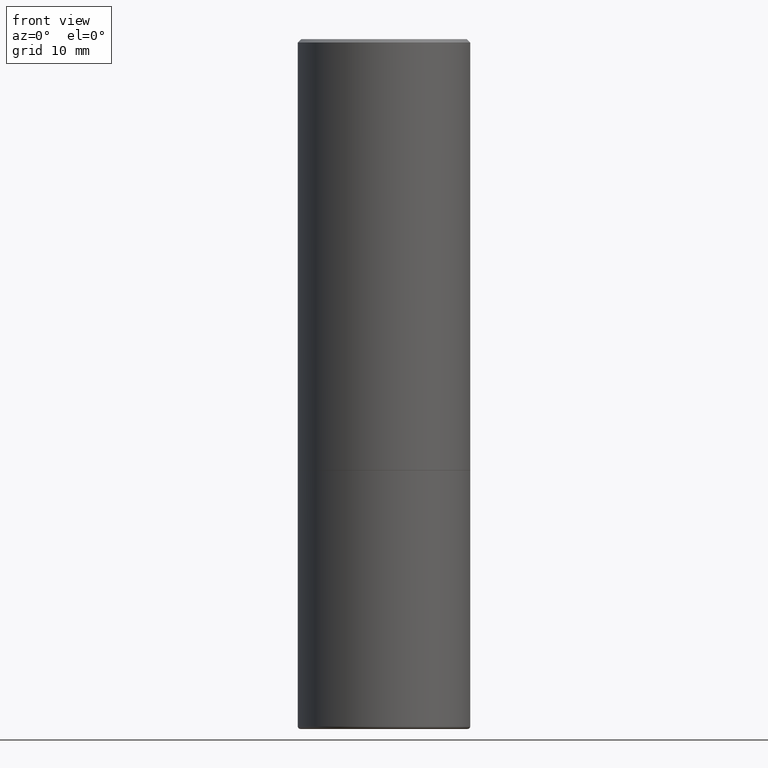
[diagram: clean part render]
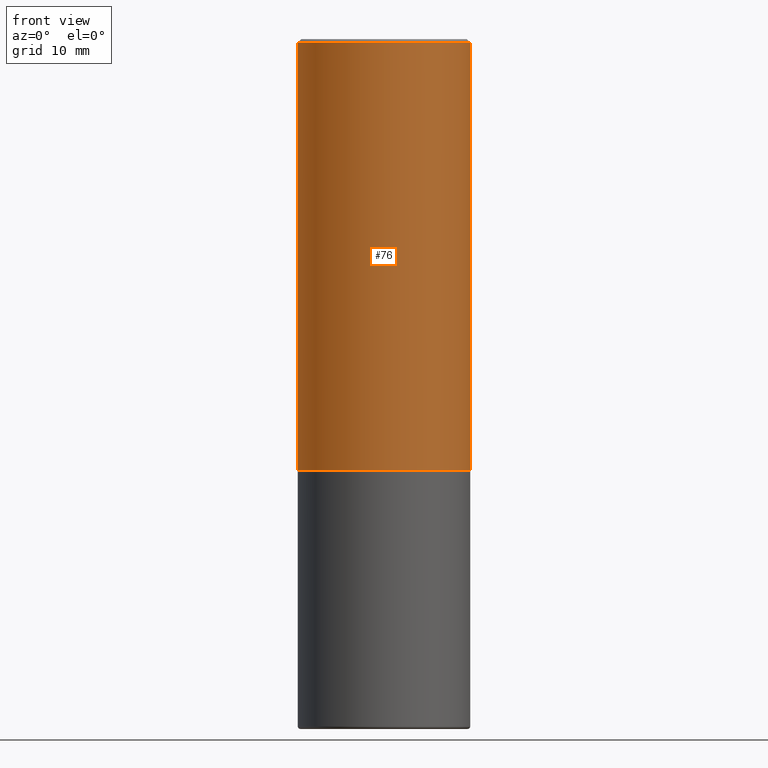
[diagram: same view with one face highlighted and labeled with its STEP entity id]
A machine part, front view. The second image highlights one B-rep face of the part: STEP entity #76.
In plain terms, the highlighted cylindrical surface (partial cylindrical patch) has radius 12.7 mm, axis along (-0, 0, 1).
Its self-contained STEP definition (entity closure, byte-faithful):
#14 = AXIS2_PLACEMENT_3D ( 'NONE', #372, #165, #340 ) ;
#25 = EDGE_CURVE ( 'NONE', #115, #157, #367, .T. ) ;
#30 = CARTESIAN_POINT ( 'NONE',  ( -0.4999999999999998335, 3.552713678800499746E-15, -2.459467545127452330E-29 ) ) ;
#32 = CARTESIAN_POINT ( 'NONE',  ( -0.5000000000000000000, -8.448070674724403070E-16, -2.499000000000000110 ) ) ;
#64 = CYLINDRICAL_SURFACE ( 'NONE', #80, 0.4999999999999998335 ) ;
#76 = ADVANCED_FACE ( 'NONE', ( #267 ), #64, .T. ) ;
#80 = AXIS2_PLACEMENT_3D ( 'NONE', #442, #309, #261 ) ;
#83 = DIRECTION ( 'NONE',  ( 1.000000000000000000, -6.982962677686265133E-15, 0.000000000000000000 ) ) ;
#98 = LINE ( 'NONE', #135, #339 ) ;
#115 = VERTEX_POINT ( 'NONE', #32 ) ;
#135 = CARTESIAN_POINT ( 'NONE',  ( 0.4999999999999998335, -3.491481338843132566E-15, 2.438088387897967336E-29 ) ) ;
#155 = EDGE_CURVE ( 'NONE', #191, #224, #98, .T. ) ;
#157 = VERTEX_POINT ( 'NONE', #264 ) ;
#165 = DIRECTION ( 'NONE',  ( -2.445468806185136597E-29, 3.491481338843145583E-15, 1.000000000000000000 ) ) ;
#169 = CARTESIAN_POINT ( 'NONE',  ( 0.4999999999999996669, -3.500078625662626318E-15, -0.02000000000000002123 ) ) ;
#177 = ORIENTED_EDGE ( 'NONE', *, *, #361, .T. ) ;
#191 = VERTEX_POINT ( 'NONE', #416 ) ;
#202 = DIRECTION ( 'NONE',  ( -2.445468806185136877E-29, 3.491481338843145188E-15, 1.000000000000000000 ) ) ;
#214 = EDGE_LOOP ( 'NONE', ( #289, #177, #420, #378 ) ) ;
#224 = VERTEX_POINT ( 'NONE', #169 ) ;
#238 = VECTOR ( 'NONE', #407, 39.37007874015748143 ) ;
#261 = DIRECTION ( 'NONE',  ( 1.000000000000000000, -6.982962677686267499E-15, 4.876176775795936353E-29 ) ) ;
#264 = CARTESIAN_POINT ( 'NONE',  ( -0.4999999999999996669, 3.421651712066268085E-15, -0.02000000000000002123 ) ) ;
#267 = FACE_OUTER_BOUND ( 'NONE', #214, .T. ) ;
#285 = CARTESIAN_POINT ( 'NONE',  ( 6.111226546656657010E-29, -8.725211865769021935E-15, -2.499000000000000110 ) ) ;
#289 = ORIENTED_EDGE ( 'NONE', *, *, #25, .F. ) ;
#294 = EDGE_CURVE ( 'NONE', #157, #224, #350, .T. ) ;
#309 = DIRECTION ( 'NONE',  ( -2.445468806185136597E-29, 3.491481338843145583E-15, 1.000000000000000000 ) ) ;
#317 = DIRECTION ( 'NONE',  ( -2.445468806185136597E-29, 3.491481338843145583E-15, 1.000000000000000000 ) ) ;
#339 = VECTOR ( 'NONE', #202, 39.37007874015748143 ) ;
#340 = DIRECTION ( 'NONE',  ( 1.000000000000000000, -6.982962677686266711E-15, 0.000000000000000000 ) ) ;
#350 = CIRCLE ( 'NONE', #14, 0.4999999999999996669 ) ;
#361 = EDGE_CURVE ( 'NONE', #115, #191, #393, .T. ) ;
#367 = LINE ( 'NONE', #30, #238 ) ;
#372 = CARTESIAN_POINT ( 'NONE',  ( 4.890937612370278413E-31, -6.982962677686297772E-17, -0.02000000000000002123 ) ) ;
#378 = ORIENTED_EDGE ( 'NONE', *, *, #294, .F. ) ;
#386 = AXIS2_PLACEMENT_3D ( 'NONE', #285, #317, #83 ) ;
#393 = CIRCLE ( 'NONE', #386, 0.5000000000000000000 ) ;
#407 = DIRECTION ( 'NONE',  ( -2.445468806185136877E-29, 3.491481338843145188E-15, 1.000000000000000000 ) ) ;
#416 = CARTESIAN_POINT ( 'NONE',  ( 0.5000000000000000000, -1.221669320461215371E-14, -2.499000000000000110 ) ) ;
#420 = ORIENTED_EDGE ( 'NONE', *, *, #155, .T. ) ;
#442 = CARTESIAN_POINT ( 'NONE',  ( 0.000000000000000000, 0.000000000000000000, 0.000000000000000000 ) ) ;